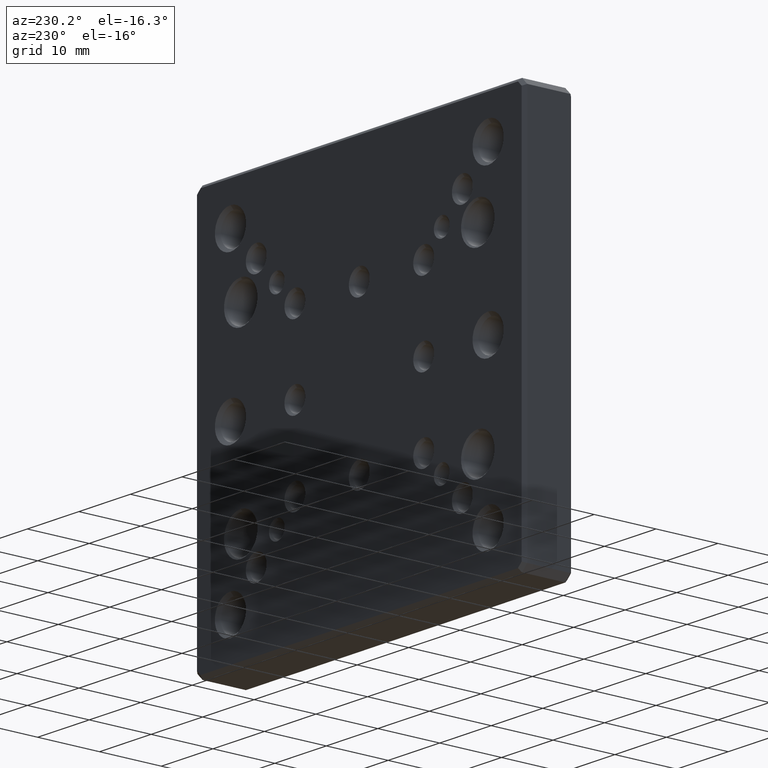
[diagram: clean part render]
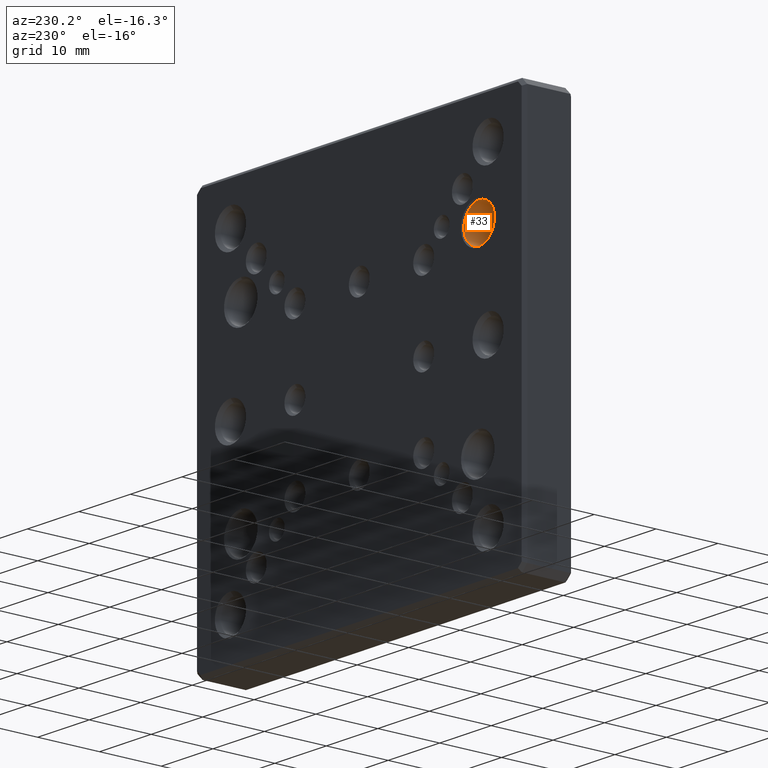
[diagram: same view with one face highlighted and labeled with its STEP entity id]
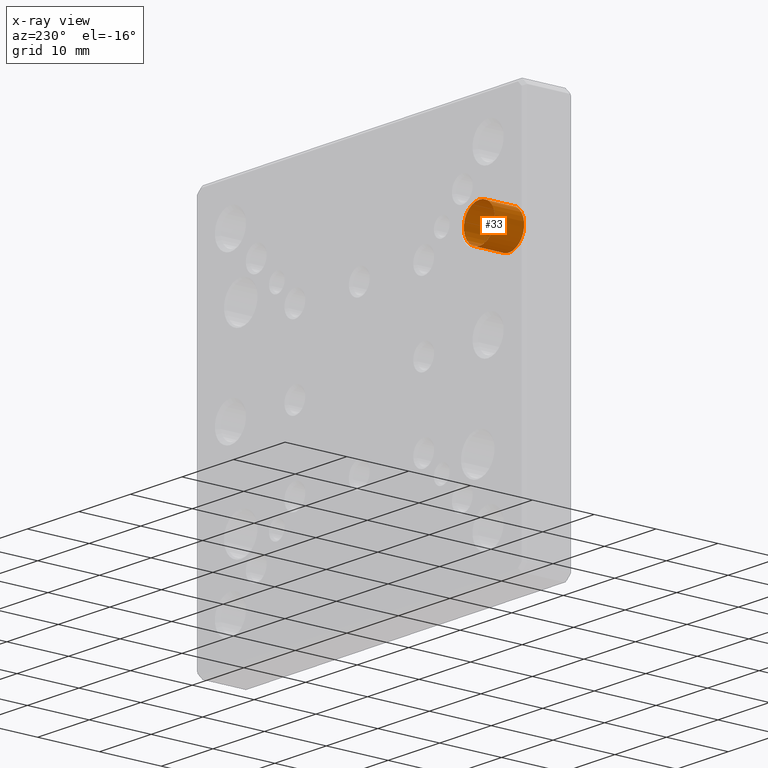
[diagram: x-ray of the same camera — body ghosted, the highlighted face saturated]
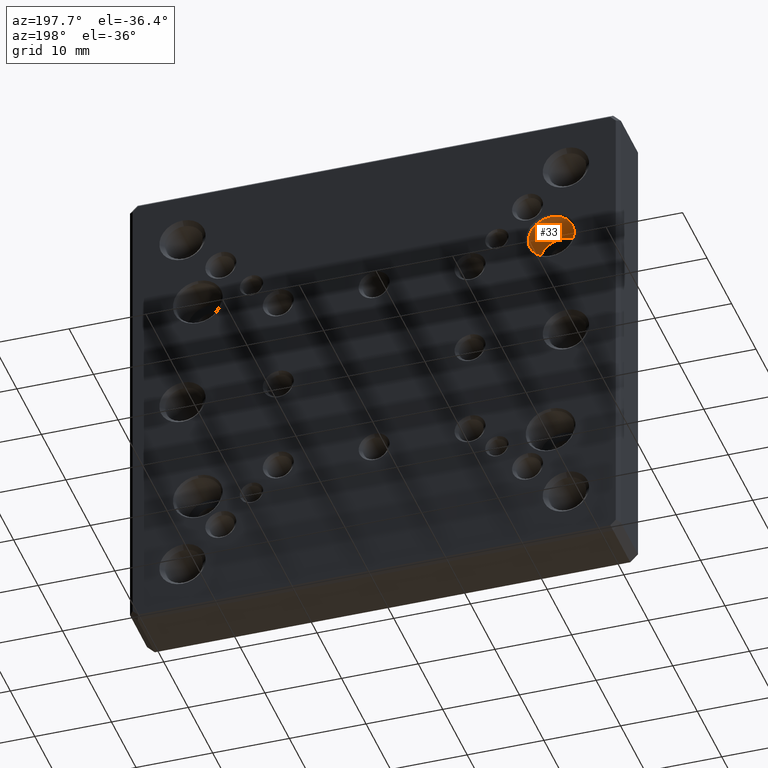
[diagram: same view with one face highlighted and labeled with its STEP entity id]
A machine part, auxiliary view. The second image highlights one B-rep face of the part: STEP entity #33.
The next image is the same camera in x-ray: the body ghosted, the highlighted face saturated — about 0% of this face is hidden behind the body in this view.
A second angle (auxiliary view) of the same face is appended — the face is thin or edge-on in the first view.
In plain terms, the highlighted cylindrical surface (bore or boss wall) has radius 3 mm, axis along (-0, 1, -0).
Its self-contained STEP definition (entity closure, byte-faithful):
#21 = AXIS2_PLACEMENT_3D ( 'NONE', #1410, #327, #1203 ) ;
#33 = ADVANCED_FACE ( 'NONE', ( #1071, #1572 ), #341, .F. ) ;
#58 = CIRCLE ( 'NONE', #21, 3.000000000000014655 ) ;
#327 = DIRECTION ( 'NONE',  ( -0.000000000000000000, 1.000000000000000000, -0.000000000000000000 ) ) ;
#341 = CYLINDRICAL_SURFACE ( 'NONE', #1224, 3.000000000000014655 ) ;
#506 = CARTESIAN_POINT ( 'NONE',  ( -23.00000000000000000, 7.749999999999992895, 15.00000000000000178 ) ) ;
#524 = VERTEX_POINT ( 'NONE', #1743 ) ;
#692 = EDGE_LOOP ( 'NONE', ( #2031 ) ) ;
#867 = CIRCLE ( 'NONE', #2300, 3.000000000000014655 ) ;
#1071 = FACE_OUTER_BOUND ( 'NONE', #2064, .T. ) ;
#1190 = ORIENTED_EDGE ( 'NONE', *, *, #1771, .T. ) ;
#1191 = DIRECTION ( 'NONE',  ( 0.000000000000000000, 0.000000000000000000, 1.000000000000000000 ) ) ;
#1203 = DIRECTION ( 'NONE',  ( 0.000000000000000000, 0.000000000000000000, 1.000000000000000000 ) ) ;
#1207 = DIRECTION ( 'NONE',  ( -0.000000000000000000, 1.000000000000000000, -0.000000000000000000 ) ) ;
#1209 = VERTEX_POINT ( 'NONE', #1913 ) ;
#1224 = AXIS2_PLACEMENT_3D ( 'NONE', #1949, #1207, #1602 ) ;
#1410 = CARTESIAN_POINT ( 'NONE',  ( -23.00000000000000000, 3.000000000000000000, 15.00000000000000178 ) ) ;
#1423 = DIRECTION ( 'NONE',  ( 0.000000000000000000, 1.000000000000000000, 0.000000000000000000 ) ) ;
#1572 = FACE_OUTER_BOUND ( 'NONE', #692, .T. ) ;
#1602 = DIRECTION ( 'NONE',  ( 0.000000000000000000, 0.000000000000000000, 1.000000000000000000 ) ) ;
#1743 = CARTESIAN_POINT ( 'NONE',  ( -23.00000000000000000, 3.000000000000000000, 18.00000000000001421 ) ) ;
#1753 = EDGE_CURVE ( 'NONE', #524, #524, #58, .T. ) ;
#1771 = EDGE_CURVE ( 'NONE', #1209, #1209, #867, .T. ) ;
#1913 = CARTESIAN_POINT ( 'NONE',  ( -23.00000000000000000, 7.749999999999992895, 18.00000000000001421 ) ) ;
#1949 = CARTESIAN_POINT ( 'NONE',  ( -23.00000000000000000, 8.000000000000000000, 15.00000000000000178 ) ) ;
#2031 = ORIENTED_EDGE ( 'NONE', *, *, #1753, .F. ) ;
#2064 = EDGE_LOOP ( 'NONE', ( #1190 ) ) ;
#2300 = AXIS2_PLACEMENT_3D ( 'NONE', #506, #1423, #1191 ) ;